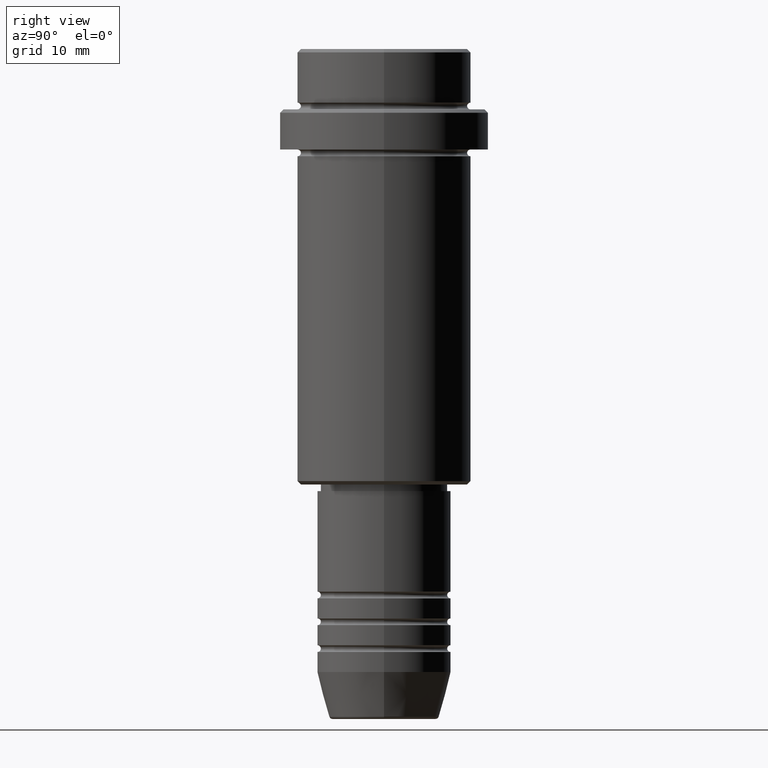
[diagram: clean part render]
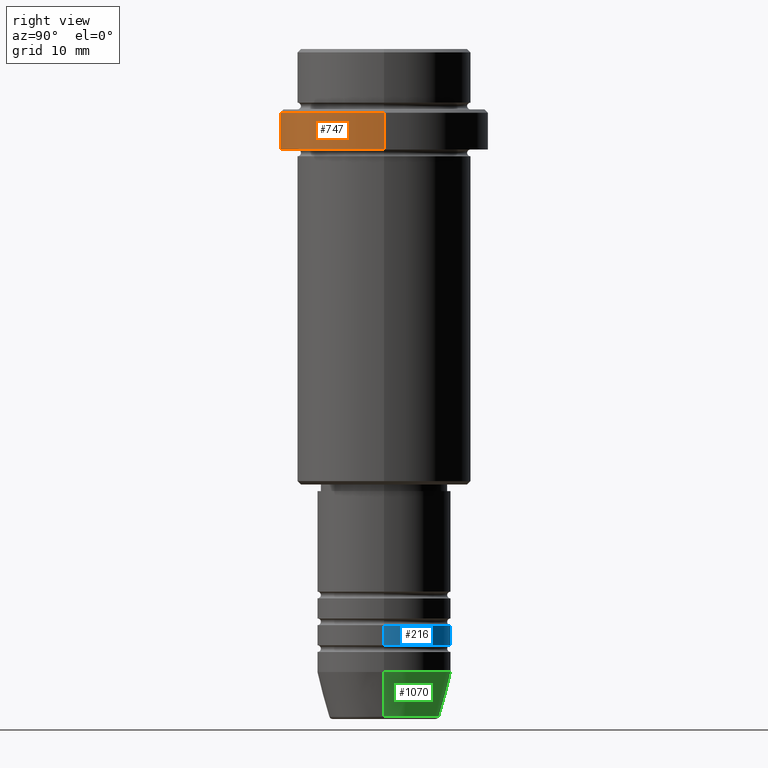
[diagram: same view with three faces highlighted in distinct colors, each labeled with its STEP entity id]
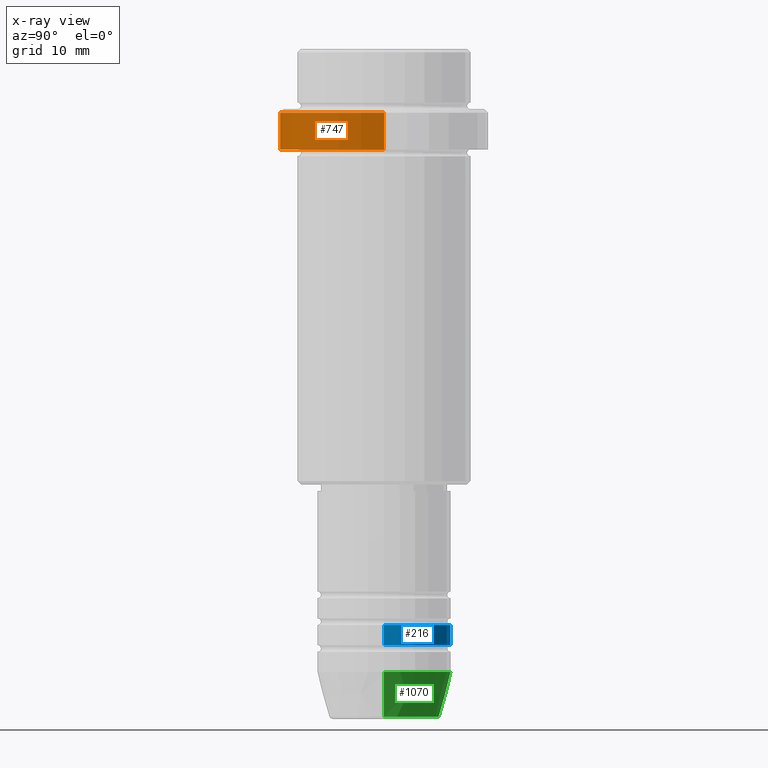
[diagram: x-ray of the same camera — body ghosted, the three highlighted faces saturated]
A machine part, right view with three faces highlighted in distinct colors.
The next image is the same camera in x-ray (body ghosted, the three faces saturated) — at least one of them is partly hidden behind the body in this view.
Their STEP definitions:

[orange] entity #747 — the highlighted cylindrical surface (partial cylindrical patch) has radius 15.5 mm, axis along (-0, -0, 1).
#61 = DIRECTION ( 'NONE',  ( -0.000000000000000000, -0.000000000000000000, 1.000000000000000000 ) ) ;
#74 = AXIS2_PLACEMENT_3D ( 'NONE', #1035, #61, #1163 ) ;
#82 = CARTESIAN_POINT ( 'NONE',  ( -15.50000000000000000, 1.898202538678397557E-15, -9.499999999999984013 ) ) ;
#105 = EDGE_CURVE ( 'NONE', #314, #1209, #1348, .T. ) ;
#106 = EDGE_LOOP ( 'NONE', ( #527, #843, #1242, #310 ) ) ;
#141 = DIRECTION ( 'NONE',  ( 0.000000000000000000, 0.000000000000000000, -1.000000000000000000 ) ) ;
#184 = EDGE_CURVE ( 'NONE', #880, #314, #618, .T. ) ;
#204 = DIRECTION ( 'NONE',  ( -0.000000000000000000, -0.000000000000000000, 1.000000000000000000 ) ) ;
#267 = DIRECTION ( 'NONE',  ( -0.000000000000000000, -0.000000000000000000, 1.000000000000000000 ) ) ;
#310 = ORIENTED_EDGE ( 'NONE', *, *, #1331, .T. ) ;
#314 = VERTEX_POINT ( 'NONE', #953 ) ;
#344 = CARTESIAN_POINT ( 'NONE',  ( -15.50000000000000000, 1.898202538678397557E-15, -15.00000000000000000 ) ) ;
#389 = VECTOR ( 'NONE', #577, 1000.000000000000000 ) ;
#527 = ORIENTED_EDGE ( 'NONE', *, *, #878, .F. ) ;
#567 = DIRECTION ( 'NONE',  ( 1.000000000000000000, 0.000000000000000000, 0.000000000000000000 ) ) ;
#577 = DIRECTION ( 'NONE',  ( -0.000000000000000000, -0.000000000000000000, 1.000000000000000000 ) ) ;
#618 = CIRCLE ( 'NONE', #74, 15.50000000000000000 ) ;
#621 = CARTESIAN_POINT ( 'NONE',  ( 15.50000000000000000, 0.000000000000000000, -9.499999999999984013 ) ) ;
#647 = FACE_OUTER_BOUND ( 'NONE', #106, .T. ) ;
#727 = VECTOR ( 'NONE', #267, 1000.000000000000000 ) ;
#741 = CARTESIAN_POINT ( 'NONE',  ( 0.000000000000000000, 0.000000000000000000, 0.000000000000000000 ) ) ;
#747 = ADVANCED_FACE ( 'NONE', ( #647 ), #1198, .T. ) ;
#750 = VERTEX_POINT ( 'NONE', #82 ) ;
#797 = CARTESIAN_POINT ( 'NONE',  ( -15.50000000000000000, 1.898202538678397557E-15, 0.000000000000000000 ) ) ;
#819 = AXIS2_PLACEMENT_3D ( 'NONE', #1208, #141, #567 ) ;
#843 = ORIENTED_EDGE ( 'NONE', *, *, #184, .T. ) ;
#878 = EDGE_CURVE ( 'NONE', #880, #750, #1328, .T. ) ;
#880 = VERTEX_POINT ( 'NONE', #344 ) ;
#953 = CARTESIAN_POINT ( 'NONE',  ( 15.50000000000000000, 0.000000000000000000, -15.00000000000000000 ) ) ;
#977 = AXIS2_PLACEMENT_3D ( 'NONE', #741, #204, #1083 ) ;
#1035 = CARTESIAN_POINT ( 'NONE',  ( 0.000000000000000000, 0.000000000000000000, -15.00000000000000000 ) ) ;
#1083 = DIRECTION ( 'NONE',  ( 1.000000000000000000, 0.000000000000000000, 0.000000000000000000 ) ) ;
#1163 = DIRECTION ( 'NONE',  ( 1.000000000000000000, 0.000000000000000000, 0.000000000000000000 ) ) ;
#1192 = CIRCLE ( 'NONE', #819, 15.50000000000000000 ) ;
#1198 = CYLINDRICAL_SURFACE ( 'NONE', #977, 15.50000000000000000 ) ;
#1208 = CARTESIAN_POINT ( 'NONE',  ( 0.000000000000000000, 0.000000000000000000, -9.499999999999984013 ) ) ;
#1209 = VERTEX_POINT ( 'NONE', #621 ) ;
#1241 = CARTESIAN_POINT ( 'NONE',  ( 15.50000000000000000, 0.000000000000000000, 0.000000000000000000 ) ) ;
#1242 = ORIENTED_EDGE ( 'NONE', *, *, #105, .T. ) ;
#1328 = LINE ( 'NONE', #797, #389 ) ;
#1331 = EDGE_CURVE ( 'NONE', #1209, #750, #1192, .T. ) ;
#1348 = LINE ( 'NONE', #1241, #727 ) ;

[blue] entity #216 — the highlighted cylindrical surface (partial cylindrical patch) has radius 10 mm, axis along (-0, -0, 1).
#26 = CIRCLE ( 'NONE', #864, 10.00000000000000000 ) ;
#27 = AXIS2_PLACEMENT_3D ( 'NONE', #183, #1383, #812 ) ;
#81 = LINE ( 'NONE', #422, #457 ) ;
#178 = FACE_OUTER_BOUND ( 'NONE', #978, .T. ) ;
#183 = CARTESIAN_POINT ( 'NONE',  ( 0.000000000000000000, 0.000000000000000000, 0.000000000000000000 ) ) ;
#216 = ADVANCED_FACE ( 'NONE', ( #178 ), #1040, .T. ) ;
#223 = ORIENTED_EDGE ( 'NONE', *, *, #1259, .F. ) ;
#224 = DIRECTION ( 'NONE',  ( -0.000000000000000000, -0.000000000000000000, 1.000000000000000000 ) ) ;
#246 = VERTEX_POINT ( 'NONE', #698 ) ;
#286 = CARTESIAN_POINT ( 'NONE',  ( -10.00000000000000000, 1.224646799147353256E-15, 0.000000000000000000 ) ) ;
#312 = DIRECTION ( 'NONE',  ( -0.000000000000000000, -0.000000000000000000, 1.000000000000000000 ) ) ;
#326 = DIRECTION ( 'NONE',  ( 1.000000000000000000, 0.000000000000000000, 0.000000000000000000 ) ) ;
#421 = VERTEX_POINT ( 'NONE', #1221 ) ;
#422 = CARTESIAN_POINT ( 'NONE',  ( 10.00000000000000000, 0.000000000000000000, 0.000000000000000000 ) ) ;
#457 = VECTOR ( 'NONE', #1301, 1000.000000000000000 ) ;
#651 = DIRECTION ( 'NONE',  ( 1.000000000000000000, 0.000000000000000000, 0.000000000000000000 ) ) ;
#688 = ORIENTED_EDGE ( 'NONE', *, *, #714, .F. ) ;
#698 = CARTESIAN_POINT ( 'NONE',  ( -10.00000000000000000, 1.224646799147353256E-15, -85.99999999999988631 ) ) ;
#714 = EDGE_CURVE ( 'NONE', #421, #246, #1194, .T. ) ;
#812 = DIRECTION ( 'NONE',  ( 1.000000000000000000, 0.000000000000000000, 0.000000000000000000 ) ) ;
#864 = AXIS2_PLACEMENT_3D ( 'NONE', #898, #224, #651 ) ;
#898 = CARTESIAN_POINT ( 'NONE',  ( 0.000000000000000000, 0.000000000000000000, -88.99999999999988631 ) ) ;
#959 = CARTESIAN_POINT ( 'NONE',  ( -10.00000000000000000, 1.224646799147353256E-15, -88.99999999999988631 ) ) ;
#961 = ORIENTED_EDGE ( 'NONE', *, *, #1345, .T. ) ;
#967 = CARTESIAN_POINT ( 'NONE',  ( 0.000000000000000000, 0.000000000000000000, -85.99999999999988631 ) ) ;
#978 = EDGE_LOOP ( 'NONE', ( #961, #986, #688, #223 ) ) ;
#986 = ORIENTED_EDGE ( 'NONE', *, *, #1135, .T. ) ;
#1019 = DIRECTION ( 'NONE',  ( -0.000000000000000000, -0.000000000000000000, 1.000000000000000000 ) ) ;
#1023 = AXIS2_PLACEMENT_3D ( 'NONE', #967, #312, #326 ) ;
#1040 = CYLINDRICAL_SURFACE ( 'NONE', #27, 10.00000000000000000 ) ;
#1135 = EDGE_CURVE ( 'NONE', #1236, #246, #1261, .T. ) ;
#1194 = CIRCLE ( 'NONE', #1023, 10.00000000000000000 ) ;
#1221 = CARTESIAN_POINT ( 'NONE',  ( 10.00000000000000000, 0.000000000000000000, -85.99999999999988631 ) ) ;
#1236 = VERTEX_POINT ( 'NONE', #959 ) ;
#1251 = VERTEX_POINT ( 'NONE', #1297 ) ;
#1259 = EDGE_CURVE ( 'NONE', #1251, #421, #81, .T. ) ;
#1261 = LINE ( 'NONE', #286, #1304 ) ;
#1297 = CARTESIAN_POINT ( 'NONE',  ( 10.00000000000000000, 0.000000000000000000, -88.99999999999988631 ) ) ;
#1301 = DIRECTION ( 'NONE',  ( -0.000000000000000000, -0.000000000000000000, 1.000000000000000000 ) ) ;
#1304 = VECTOR ( 'NONE', #1019, 1000.000000000000000 ) ;
#1345 = EDGE_CURVE ( 'NONE', #1251, #1236, #26, .T. ) ;
#1383 = DIRECTION ( 'NONE',  ( -0.000000000000000000, -0.000000000000000000, 1.000000000000000000 ) ) ;

[green] entity #1070 — the highlighted conical surface has half-angle 15 deg.
#58 = CARTESIAN_POINT ( 'NONE',  ( 0.000000000000000000, 0.000000000000000000, -93.00000000000000000 ) ) ;
#72 = DIRECTION ( 'NONE',  ( 1.000000000000000000, 0.000000000000000000, 0.000000000000000000 ) ) ;
#98 = VECTOR ( 'NONE', #1381, 1000.000000000000114 ) ;
#199 = ORIENTED_EDGE ( 'NONE', *, *, #927, .F. ) ;
#218 = AXIS2_PLACEMENT_3D ( 'NONE', #58, #826, #72 ) ;
#287 = CARTESIAN_POINT ( 'NONE',  ( -8.223655072137185940, 1.115877042642911659E-15, -99.62940952255127058 ) ) ;
#324 = CIRCLE ( 'NONE', #1233, 10.00000000000000000 ) ;
#338 = DIRECTION ( 'NONE',  ( 0.2588190451025214611, 0.000000000000000000, 0.9659258262890679791 ) ) ;
#448 = CARTESIAN_POINT ( 'NONE',  ( 0.000000000000000000, 0.000000000000000000, -99.62940952255127058 ) ) ;
#503 = EDGE_LOOP ( 'NONE', ( #1036, #981, #1128, #199 ) ) ;
#505 = AXIS2_PLACEMENT_3D ( 'NONE', #448, #1230, #680 ) ;
#569 = CIRCLE ( 'NONE', #505, 8.223655072137185940 ) ;
#610 = VERTEX_POINT ( 'NONE', #287 ) ;
#643 = CARTESIAN_POINT ( 'NONE',  ( 10.00000000000000000, 0.000000000000000000, -93.00000000000000000 ) ) ;
#667 = EDGE_CURVE ( 'NONE', #610, #882, #933, .T. ) ;
#680 = DIRECTION ( 'NONE',  ( 1.000000000000000000, 0.000000000000000000, 0.000000000000000000 ) ) ;
#694 = VERTEX_POINT ( 'NONE', #643 ) ;
#781 = CARTESIAN_POINT ( 'NONE',  ( -10.00000000000000000, 1.224646799147353256E-15, -93.00000000000000000 ) ) ;
#826 = DIRECTION ( 'NONE',  ( -0.000000000000000000, -0.000000000000000000, 1.000000000000000000 ) ) ;
#869 = VERTEX_POINT ( 'NONE', #1210 ) ;
#882 = VERTEX_POINT ( 'NONE', #781 ) ;
#899 = CARTESIAN_POINT ( 'NONE',  ( 10.00000000000000000, 0.000000000000000000, -93.00000000000000000 ) ) ;
#909 = EDGE_CURVE ( 'NONE', #869, #610, #569, .T. ) ;
#927 = EDGE_CURVE ( 'NONE', #869, #694, #1125, .T. ) ;
#933 = LINE ( 'NONE', #1362, #98 ) ;
#981 = ORIENTED_EDGE ( 'NONE', *, *, #667, .T. ) ;
#1036 = ORIENTED_EDGE ( 'NONE', *, *, #909, .T. ) ;
#1070 = ADVANCED_FACE ( 'NONE', ( #1377 ), #1117, .T. ) ;
#1117 = CONICAL_SURFACE ( 'NONE', #218, 10.00000000000000000, 0.2617993877991502405 ) ;
#1125 = LINE ( 'NONE', #899, #1312 ) ;
#1128 = ORIENTED_EDGE ( 'NONE', *, *, #1213, .F. ) ;
#1167 = DIRECTION ( 'NONE',  ( -0.000000000000000000, -0.000000000000000000, 1.000000000000000000 ) ) ;
#1210 = CARTESIAN_POINT ( 'NONE',  ( 8.223655072137185940, 0.000000000000000000, -99.62940952255127058 ) ) ;
#1213 = EDGE_CURVE ( 'NONE', #694, #882, #324, .T. ) ;
#1230 = DIRECTION ( 'NONE',  ( -0.000000000000000000, -0.000000000000000000, 1.000000000000000000 ) ) ;
#1233 = AXIS2_PLACEMENT_3D ( 'NONE', #1281, #1167, #1409 ) ;
#1281 = CARTESIAN_POINT ( 'NONE',  ( 0.000000000000000000, 0.000000000000000000, -93.00000000000000000 ) ) ;
#1312 = VECTOR ( 'NONE', #338, 1000.000000000000114 ) ;
#1362 = CARTESIAN_POINT ( 'NONE',  ( -10.00000000000000000, 1.224646799147353256E-15, -93.00000000000000000 ) ) ;
#1377 = FACE_OUTER_BOUND ( 'NONE', #503, .T. ) ;
#1381 = DIRECTION ( 'NONE',  ( -0.2588190451025214611, 3.169619151431774186E-17, 0.9659258262890679791 ) ) ;
#1409 = DIRECTION ( 'NONE',  ( 1.000000000000000000, 0.000000000000000000, 0.000000000000000000 ) ) ;